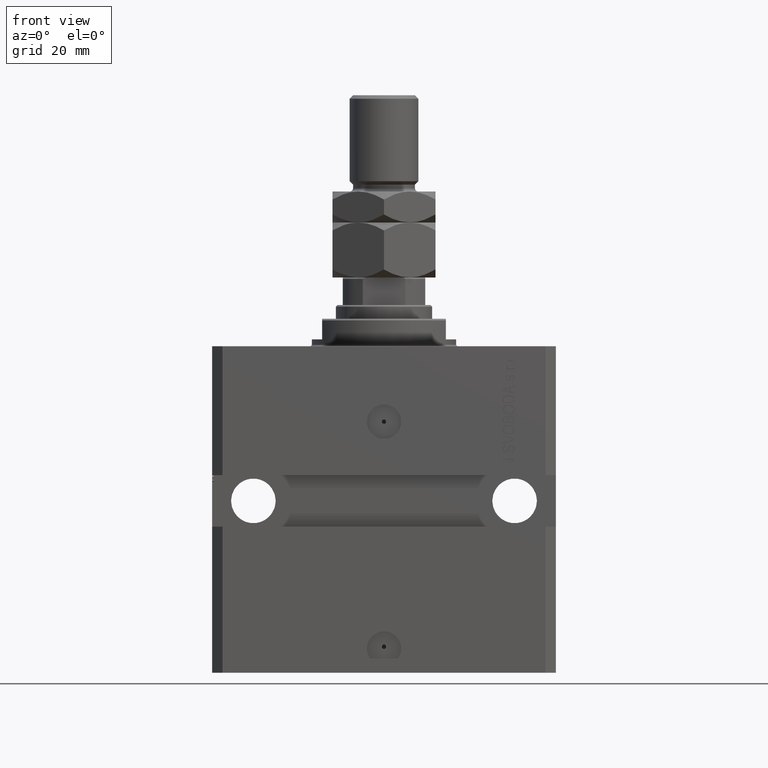
[diagram: clean part render]
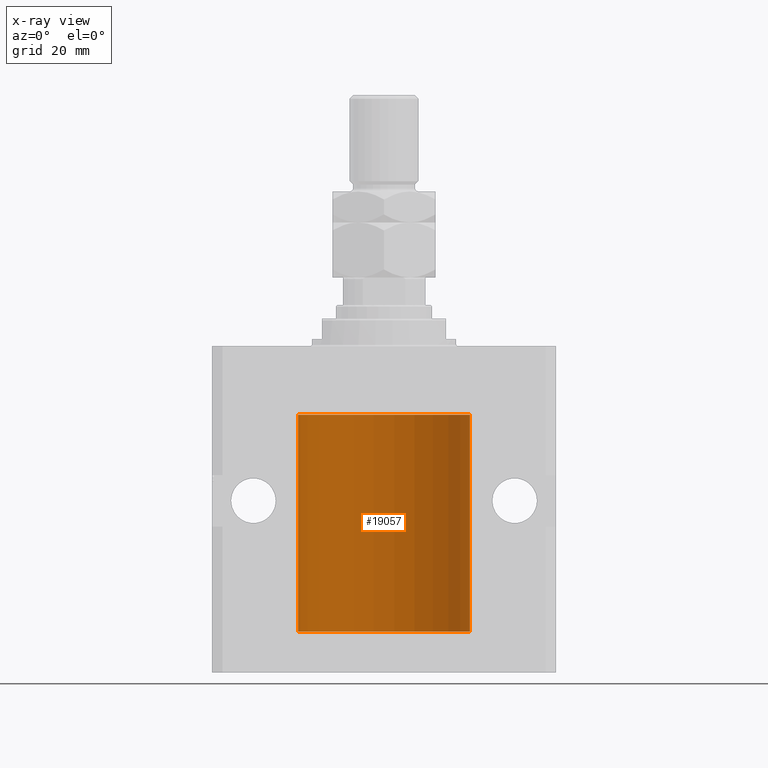
[diagram: x-ray — body ghosted, one internal face saturated and labeled with its STEP entity id]
A machine part, front view, then the same camera in x-ray: the body is ghosted and one INTERNAL B-rep face — a face not visible from any outside direction — is saturated and labeled: STEP entity #19057.
In plain terms, the highlighted cylindrical surface (partial cylindrical patch) has radius 25 mm, axis along (0, 0, 1).
Its self-contained STEP definition (entity closure, byte-faithful):
#202 = EDGE_CURVE ( 'NONE', #43072, #9632, #48330, .T. ) ;
#682 = CARTESIAN_POINT ( 'NONE',  ( -24.99711159039964414, 0.3843660423108813950, -24.50046193055078803 ) ) ;
#1135 = VERTEX_POINT ( 'NONE', #26289 ) ;
#1157 = CARTESIAN_POINT ( 'NONE',  ( 25.00000000000000000, 0.000000000000000000, -83.09999999999999432 ) ) ;
#1863 = CARTESIAN_POINT ( 'NONE',  ( -24.99812965334069759, 0.3150303239408748790, -79.95401901831677094 ) ) ;
#3037 = CARTESIAN_POINT ( 'NONE',  ( 0.000000000000000000, 0.000000000000000000, -20.00000000000000355 ) ) ;
#4294 = VERTEX_POINT ( 'NONE', #47431 ) ;
#4389 = AXIS2_PLACEMENT_3D ( 'NONE', #26893, #42104, #12476 ) ;
#5154 = DIRECTION ( 'NONE',  ( -0.000000000000000000, -0.000000000000000000, 1.000000000000000000 ) ) ;
#6332 = CARTESIAN_POINT ( 'NONE',  ( -24.99815474281802352, 0.3253832813992149631, -81.05855609393753980 ) ) ;
#7572 = CARTESIAN_POINT ( 'NONE',  ( 0.000000000000000000, 0.000000000000000000, -83.09999999999999432 ) ) ;
#8160 = CARTESIAN_POINT ( 'NONE',  ( -24.99402840204668408, 0.5587119681668532012, -25.32511555871104747 ) ) ;
#8411 = CARTESIAN_POINT ( 'NONE',  ( -24.99812965334069403, 0.3150303239408847600, -24.45401901831676383 ) ) ;
#8817 = EDGE_CURVE ( 'NONE', #4294, #1135, #33754, .T. ) ;
#9124 = CARTESIAN_POINT ( 'NONE',  ( -25.00000000000000000, 3.061616997868383043E-15, -20.00000000000000355 ) ) ;
#9340 = CARTESIAN_POINT ( 'NONE',  ( -24.99711159039963704, 0.3843660423108775648, -80.00046193055077026 ) ) ;
#9588 = CARTESIAN_POINT ( 'NONE',  ( -24.99402840204668408, 0.5587119681668529791, -80.82511555871103326 ) ) ;
#9632 = VERTEX_POINT ( 'NONE', #26869 ) ;
#9743 = B_SPLINE_CURVE_WITH_KNOTS ( 'NONE', 3,
 ( #43210, #20754, #28984, #1863, #9340, #43682, #9839, #40417, #9588, #6332, #24254, #24739 ),
 .UNSPECIFIED., .F., .F.,
 ( 4, 2, 2, 2, 2, 4 ),
 ( 1.760582088384631428E-18, 0.0002442639708601806493, 0.0004885279417203595639, 0.0009770558834406879029, 0.001465583825161016242, 0.001954111766881344581 ),
 .UNSPECIFIED. ) ;
#9839 = CARTESIAN_POINT ( 'NONE',  ( -24.99218772708281122, 0.6249420913990306747, -80.33671206966755562 ) ) ;
#11897 = CIRCLE ( 'NONE', #30974, 25.00000000000000000 ) ;
#11983 = CYLINDRICAL_SURFACE ( 'NONE', #4389, 25.00000000000000000 ) ;
#12141 = CARTESIAN_POINT ( 'NONE',  ( -25.00000000000001421, 0.08259386895071110790, -24.37500000000000000 ) ) ;
#12182 = EDGE_CURVE ( 'NONE', #43072, #1135, #9743, .T. ) ;
#12384 = CARTESIAN_POINT ( 'NONE',  ( 25.00000000000000000, 0.000000000000000000, -83.09999999999999432 ) ) ;
#12476 = DIRECTION ( 'NONE',  ( 1.000000000000000000, 0.000000000000000000, 0.000000000000000000 ) ) ;
#13035 = CARTESIAN_POINT ( 'NONE',  ( 25.00000000000000000, 0.000000000000000000, -20.00000000000000355 ) ) ;
#14965 = CARTESIAN_POINT ( 'NONE',  ( -25.00000000000000000, 3.061616997868383043E-15, -83.09999999999999432 ) ) ;
#15033 = EDGE_CURVE ( 'NONE', #46826, #34428, #42260, .T. ) ;
#15550 = ORIENTED_EDGE ( 'NONE', *, *, #8817, .F. ) ;
#15631 = CARTESIAN_POINT ( 'NONE',  ( -25.00000000000000000, -9.603917560234690571E-15, -24.37500000000000000 ) ) ;
#15705 = ORIENTED_EDGE ( 'NONE', *, *, #22315, .T. ) ;
#16001 = ORIENTED_EDGE ( 'NONE', *, *, #15033, .T. ) ;
#16595 = CARTESIAN_POINT ( 'NONE',  ( -24.99815474281801997, 0.3253832813992120210, -25.55855609393753269 ) ) ;
#18481 = DIRECTION ( 'NONE',  ( 0.000000000000000000, 0.000000000000000000, 1.000000000000000000 ) ) ;
#19057 = ADVANCED_FACE ( 'NONE', ( #30655 ), #11983, .F. ) ;
#20454 = CARTESIAN_POINT ( 'NONE',  ( -25.00000000000000000, -2.172643007029407462E-14, -79.87500000000000000 ) ) ;
#20632 = VECTOR ( 'NONE', #33375, 1000.000000000000000 ) ;
#20754 = CARTESIAN_POINT ( 'NONE',  ( -25.00000000000000000, 0.08259386895070071344, -79.87500000000000000 ) ) ;
#21176 = ORIENTED_EDGE ( 'NONE', *, *, #12182, .T. ) ;
#21928 = VERTEX_POINT ( 'NONE', #9124 ) ;
#22280 = CARTESIAN_POINT ( 'NONE',  ( -25.00000000000000000, 3.061616997868383043E-15, -83.09999999999999432 ) ) ;
#22315 = EDGE_CURVE ( 'NONE', #34428, #21928, #11897, .T. ) ;
#23219 = DIRECTION ( 'NONE',  ( 0.000000000000000000, 0.000000000000000000, 1.000000000000000000 ) ) ;
#23308 = CARTESIAN_POINT ( 'NONE',  ( -25.00000000000008171, 3.517566451145503275E-13, -25.62500000000326850 ) ) ;
#24045 = CARTESIAN_POINT ( 'NONE',  ( -24.99405295648008263, 0.5573304927633336847, -24.67348832933669200 ) ) ;
#24254 = CARTESIAN_POINT ( 'NONE',  ( -24.99999999999998579, 0.1631672031814578039, -81.12499999999981526 ) ) ;
#24739 = CARTESIAN_POINT ( 'NONE',  ( -25.00000000000008171, 3.517566579358498221E-13, -81.12500000000328271 ) ) ;
#25517 = DIRECTION ( 'NONE',  ( -0.000000000000000000, -0.000000000000000000, 1.000000000000000000 ) ) ;
#25637 = AXIS2_PLACEMENT_3D ( 'NONE', #7572, #23219, #33957 ) ;
#26289 = CARTESIAN_POINT ( 'NONE',  ( -25.00000000000008171, 3.517566579358498221E-13, -81.12500000000328271 ) ) ;
#26869 = CARTESIAN_POINT ( 'NONE',  ( -25.00000000000008171, 3.517566451145503275E-13, -25.62500000000326850 ) ) ;
#26893 = CARTESIAN_POINT ( 'NONE',  ( 0.000000000000000000, 0.000000000000000000, -83.09999999999999432 ) ) ;
#27629 = VERTEX_POINT ( 'NONE', #45196 ) ;
#28984 = CARTESIAN_POINT ( 'NONE',  ( -24.99957903978828000, 0.1636401650351763382, -79.89126259047981193 ) ) ;
#29197 = ORIENTED_EDGE ( 'NONE', *, *, #41040, .T. ) ;
#29697 = DIRECTION ( 'NONE',  ( -0.000000000000000000, -0.000000000000000000, 1.000000000000000000 ) ) ;
#30655 = FACE_OUTER_BOUND ( 'NONE', #39831, .T. ) ;
#30974 = AXIS2_PLACEMENT_3D ( 'NONE', #3037, #18481, #37401 ) ;
#32079 = B_SPLINE_CURVE_WITH_KNOTS ( 'NONE', 3,
 ( #15631, #12141, #46005, #8411, #682, #24045, #42264, #35030, #8160, #16595, #42757, #23308 ),
 .UNSPECIFIED., .F., .F.,
 ( 4, 2, 2, 2, 2, 4 ),
 ( 4.396951630244787669E-19, 0.0002442639708601663379, 0.0004885279417203322420, 0.0009770558834406712061, 0.001465583825161009953, 0.001954111766881348917 ),
 .UNSPECIFIED. ) ;
#33215 = EDGE_CURVE ( 'NONE', #46826, #4294, #47961, .T. ) ;
#33375 = DIRECTION ( 'NONE',  ( -0.000000000000000000, -0.000000000000000000, 1.000000000000000000 ) ) ;
#33754 = LINE ( 'NONE', #22280, #36721 ) ;
#33957 = DIRECTION ( 'NONE',  ( 1.000000000000000000, 0.000000000000000000, 0.000000000000000000 ) ) ;
#34170 = CARTESIAN_POINT ( 'NONE',  ( -25.00000000000000000, 3.061616997868383043E-15, -83.09999999999999432 ) ) ;
#34428 = VERTEX_POINT ( 'NONE', #13035 ) ;
#34562 = VECTOR ( 'NONE', #5154, 1000.000000000000000 ) ;
#34855 = ORIENTED_EDGE ( 'NONE', *, *, #202, .F. ) ;
#35030 = CARTESIAN_POINT ( 'NONE',  ( -24.99218483271614843, 0.6250578298876515726, -25.16284432778144975 ) ) ;
#36721 = VECTOR ( 'NONE', #25517, 1000.000000000000000 ) ;
#37401 = DIRECTION ( 'NONE',  ( 1.000000000000000000, 0.000000000000000000, 0.000000000000000000 ) ) ;
#39341 = VECTOR ( 'NONE', #29697, 1000.000000000000000 ) ;
#39831 = EDGE_LOOP ( 'NONE', ( #15550, #40652, #16001, #15705, #48343, #29197, #34855, #21176 ) ) ;
#40417 = CARTESIAN_POINT ( 'NONE',  ( -24.99218483271614843, 0.6250578298876484640, -80.66284432778144264 ) ) ;
#40641 = LINE ( 'NONE', #34170, #39341 ) ;
#40652 = ORIENTED_EDGE ( 'NONE', *, *, #33215, .F. ) ;
#41040 = EDGE_CURVE ( 'NONE', #27629, #9632, #32079, .T. ) ;
#41563 = EDGE_CURVE ( 'NONE', #27629, #21928, #40641, .T. ) ;
#42104 = DIRECTION ( 'NONE',  ( -0.000000000000000000, -0.000000000000000000, 1.000000000000000000 ) ) ;
#42260 = LINE ( 'NONE', #12384, #34562 ) ;
#42264 = CARTESIAN_POINT ( 'NONE',  ( -24.99218772708281477, 0.6249420913990341164, -24.83671206966754852 ) ) ;
#42757 = CARTESIAN_POINT ( 'NONE',  ( -24.99999999999998934, 0.1631672031814573320, -25.62499999999985079 ) ) ;
#43072 = VERTEX_POINT ( 'NONE', #20454 ) ;
#43210 = CARTESIAN_POINT ( 'NONE',  ( -25.00000000000000000, -2.172643007029407462E-14, -79.87500000000000000 ) ) ;
#43682 = CARTESIAN_POINT ( 'NONE',  ( -24.99405295648007908, 0.5573304927633301320, -80.17348832933667779 ) ) ;
#45196 = CARTESIAN_POINT ( 'NONE',  ( -25.00000000000000000, -9.603917560234690571E-15, -24.37500000000000000 ) ) ;
#46005 = CARTESIAN_POINT ( 'NONE',  ( -24.99957903978827289, 0.1636401650351867743, -24.39126259047981904 ) ) ;
#46826 = VERTEX_POINT ( 'NONE', #1157 ) ;
#47431 = CARTESIAN_POINT ( 'NONE',  ( -25.00000000000000000, 3.061616997868383043E-15, -83.09999999999999432 ) ) ;
#47961 = CIRCLE ( 'NONE', #25637, 25.00000000000000000 ) ;
#48330 = LINE ( 'NONE', #14965, #20632 ) ;
#48343 = ORIENTED_EDGE ( 'NONE', *, *, #41563, .F. ) ;